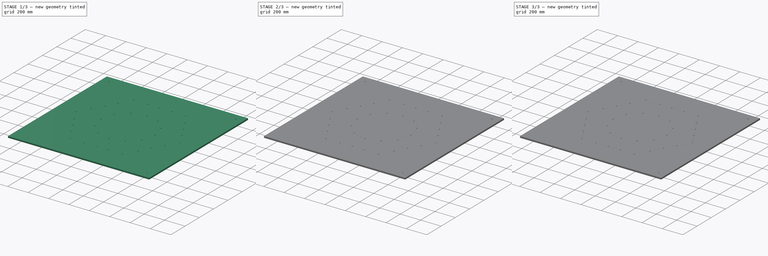
[diagram: build sequence overview — one tinted view per stage of 3, left to right]
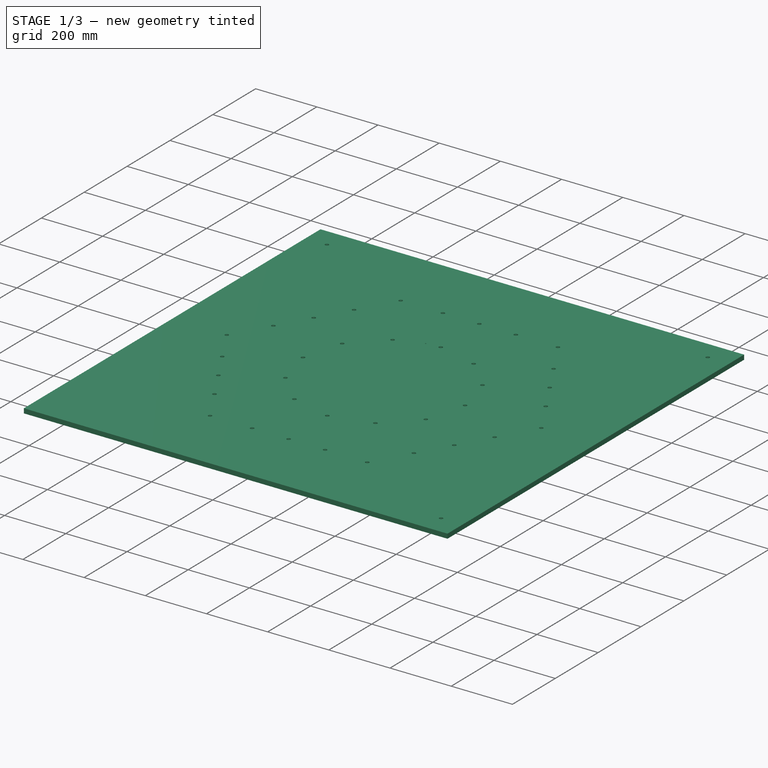
[diagram: stage 1 of 3 — iso view after this stage's code; geometry added in this stage tinted green]
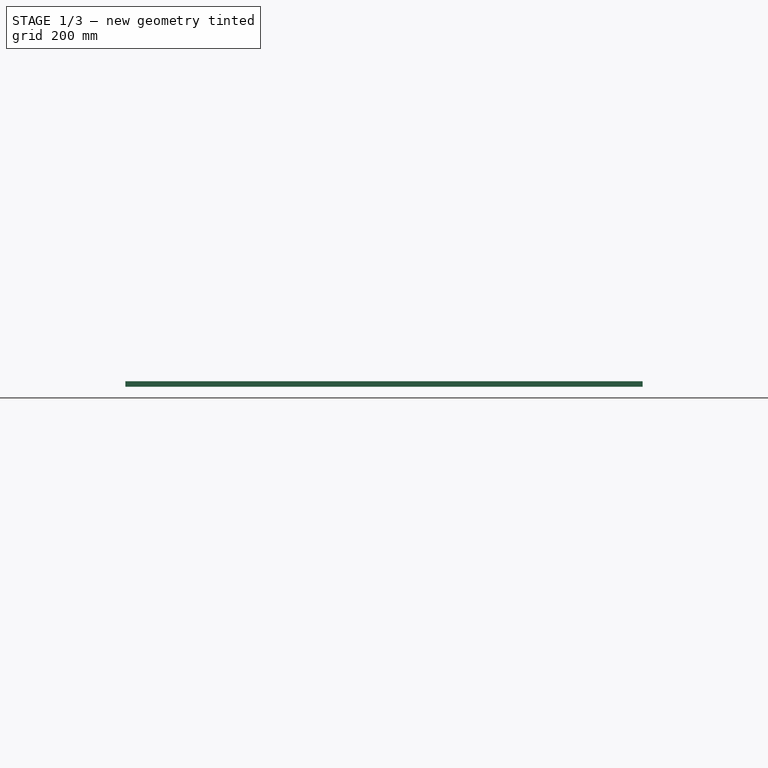
[diagram: stage 1 of 3 — front view after this stage's code; geometry added in this stage tinted green]
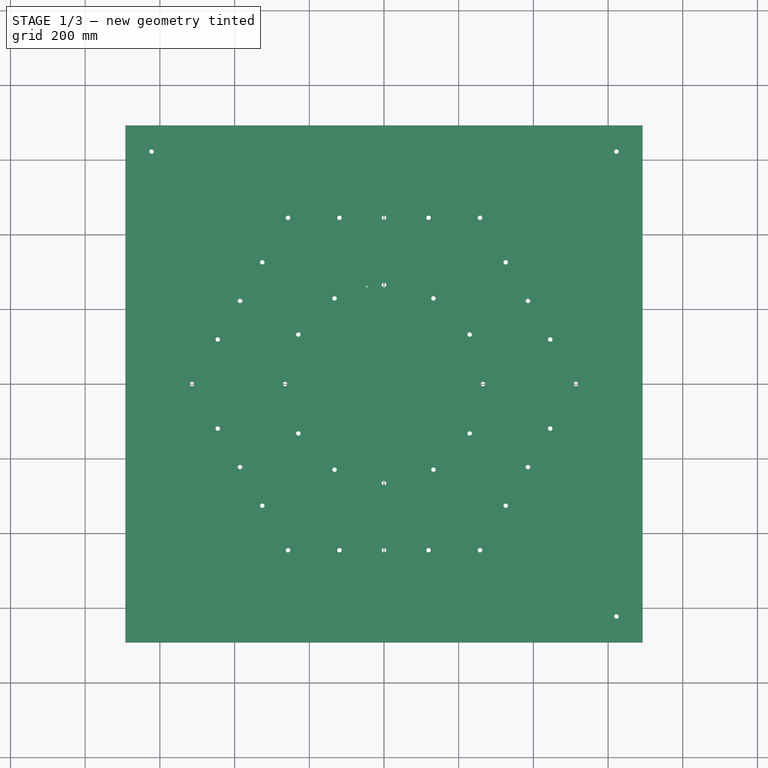
[diagram: stage 1 of 3 — top view after this stage's code; geometry added in this stage tinted green]
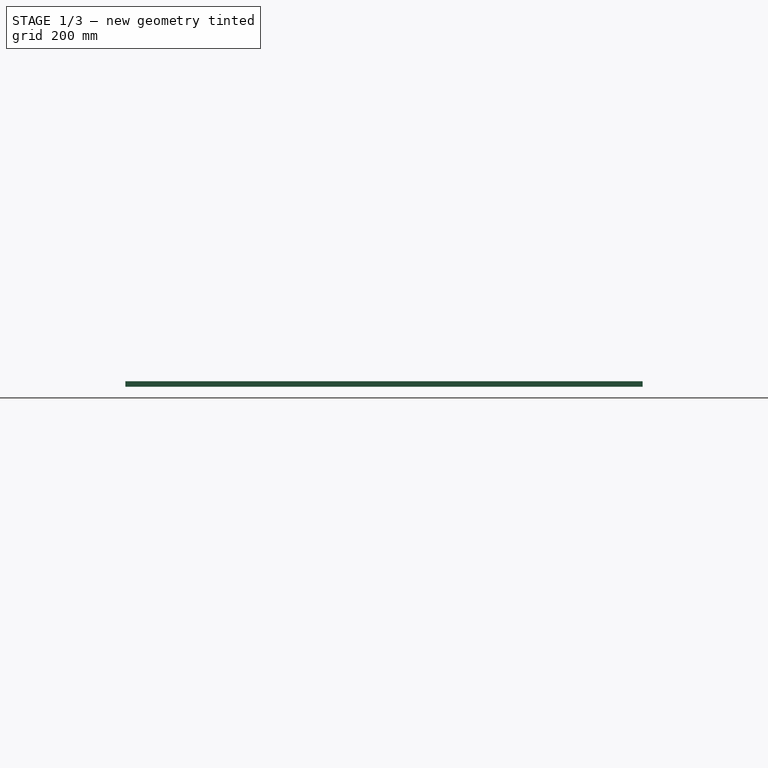
[diagram: stage 1 of 3 — right view after this stage's code; geometry added in this stage tinted green]
FCSTD DOCUMENT  (FreeCAD 1.0R39109 (Git))
Label: Stator_Mold_BoltShaftLayer_Hexagonal
License: All rights reserved
LicenseURL: http://en.wikipedia.org/wiki/All_rights_reserved
objects: App::Link×10, App::Part×3, Sketcher::SketchObject×2, PartDesign::Pocket×2, PartDesign::PolarPattern×2, Part::FeaturePython×2, Spreadsheet::Sheet×1, PartDesign::Plane×1, PartDesign::SubShapeBinder×1, PartDesign::FeatureBase×1, PartDesign::Body×1
note: 19 computed .brp shape members not serialized (recipe doc carries the construction recipe); baked Part::Feature solids carry a one-line shape summary decoded from their .brp
EXTERNAL_REF file=../../../Master_of_Puppets.FCStd obj=Alternator
EXTERNAL_REF file=../../../Master_of_Puppets.FCStd obj=Spreadsheet
EXTERNAL_REF file=Stator_Mold_BoltShaftPattern_Hexagonal.FCStd obj=Body
EXTERNAL_REF file=../../../Fasteners/Fastener_WoodScrew_StatorMold.FCStd obj=Part

FEATURE [PartDesign::Body] Body  label="Stator_Mold_BoltShaftLayer"
  AllowCompound = false
  BaseFeature = -> Binder
  Group = -> [BaseFeature,DatumPlane001,Sketch,Pocket,PolarPattern,Sketch001,Pocket001,PolarPattern001]
  Openafpm_Flat = true
  Origin = -> Origin
  Tip = -> PolarPattern001
FEATURE [App::Link] Link  label="Fastener_WoodScrew_Inner1"
  LinkPlacement = pos=(260.841,45.9933,0) rot=(0,0,1;0rad)
  LinkedObject = -> <external ../../../Fasteners/Fastener_WoodScrew_StatorMold.FCStd>#Part
  Placement = pos=(260.841,45.9933,0) rot=(0,0,1;0rad)
  expr: .Placement.Base.x = Spreadsheet.InnerScrew1X
  expr: .Placement.Base.y = Spreadsheet.InnerScrew1Y
FEATURE [App::Link] Link001  label="Fastener_WoodScrew_Inner2"
  LinkPlacement = pos=(248.892,90.5892,0) rot=(0,0,1;0rad)
  LinkedObject = -> Link
  Placement = pos=(248.892,90.5892,0) rot=(0,0,1;0rad)
  expr: .Placement.Base.x = Spreadsheet.InnerScrew2X
  expr: .Placement.Base.y = Spreadsheet.InnerScrew2Y
FEATURE [App::Part] Part  label="Inner_Screws_Part"
  Group = -> [Link,Link001]
  Origin = -> Origin001
FEATURE [Part::FeaturePython] Array  label="IslandScrews"  # Draft array (typed FeaturePython)
  AlwaysSyncPlacement = false
  Angle = 360
  ArrayType = 1
  Axis = (0,0,1)
  Base = -> Part
  Center = (0,0,0)
  Count = 12
  ExpandArray = false
  Fuse = false
  IntervalAxis = (0,0,0)
  IntervalX = (50,0,0)
  IntervalY = (0,50,0)
  IntervalZ = (0,0,50)
  NumberCircles = 3
  NumberPolar = 12
  NumberX = 2
  NumberY = 2
  NumberZ = 1
  PlacementList = 12 placements: [(0,0,0),(0,0,0),(0,0,0),(0,0,0),(0,0,0),(0,0,0),(0,0,0),(0,0,0),(0,0,0),(0,0,0),(0,0,0),(0,0,0)]
  RadialDistance = 50
  ScaleList = (12) [(1,1,1),(1,1,1),(1,1,1),(1,1,1),(1,1,1),(1,1,1),(1,1,1),(1,1,1),(1,1,1),(1,1,1),(1,1,1),(1,1,1)]
  Symmetry = 1
  TangentialDistance = 25
  expr: .Placement.Base.z = Spreadsheet.ScrewZ
  expr: NumberPolar = Spreadsheet.StatorMoldIslandNumberOfPolarPatternScrewOccurrences
FEATURE [App::Link] Link002  label="Fastener_WoodScrew_Outer1"
  LinkPlacement = pos=(-207.579,-445.155,0) rot=(0,0,1;0rad)
  LinkedObject = -> Link
  Placement = pos=(-207.579,-445.155,0) rot=(0,0,1;0rad)
  expr: .Placement.Base.x = Spreadsheet.OuterScrew1X
  expr: .Placement.Base.y = Spreadsheet.OuterScrew1Y
FEATURE [App::Link] Link003  label="Fastener_WoodScrew_Outer2"
  LinkPlacement = pos=(-162.023,-445.155,0) rot=(0,0,1;0rad)
  LinkedObject = -> Link002
  Placement = pos=(-162.023,-445.155,0) rot=(0,0,1;0rad)
  expr: .Placement.Base.x = Spreadsheet.OuterScrew2X
  expr: .Placement.Base.y = Spreadsheet.OuterScrew2Y
FEATURE [App::Link] Link004  label="Fastener_WoodScrew_Outer3"
  LinkPlacement = pos=(-78.4928,-445.155,0) rot=(0,0,1;0rad)
  LinkedObject = -> Link003
  Placement = pos=(-78.4928,-445.155,0) rot=(0,0,1;0rad)
  expr: .Placement.Base.x = Spreadsheet.OuterScrew3X
  expr: .Placement.Base.y = Spreadsheet.OuterScrew3Y
FEATURE [App::Link] Link005  label="Fastener_WoodScrew_Outer4"
  LinkPlacement = pos=(-38.946,-445.155,0) rot=(0,0,1;0rad)
  LinkedObject = -> Link004
  Placement = pos=(-38.946,-445.155,0) rot=(0,0,1;0rad)
  expr: .Placement.Base.x = Spreadsheet.OuterScrew4X
  expr: .Placement.Base.y = Spreadsheet.OuterScrew4Y
FEATURE [App::Link] Link006  label="Fastener_WoodScrew_Outer5"
  LinkPlacement = pos=(38.946,-445.155,0) rot=(0,0,1;0rad)
  LinkedObject = -> Link005
  Placement = pos=(38.946,-445.155,0) rot=(0,0,1;0rad)
  expr: .Placement.Base.x = Spreadsheet.OuterScrew5X
  expr: .Placement.Base.y = Spreadsheet.OuterScrew5Y
FEATURE [App::Link] Link007  label="Fastener_WoodScrew_Outer6"
  LinkPlacement = pos=(78.4928,-445.155,0) rot=(0,0,1;0rad)
  LinkedObject = -> Link006
  Placement = pos=(78.4928,-445.155,0) rot=(0,0,1;0rad)
  expr: .Placement.Base.x = Spreadsheet.OuterScrew6X
  expr: .Placement.Base.y = Spreadsheet.OuterScrew6Y
FEATURE [App::Link] Link008  label="Fastener_WoodScrew_Outer7"
  LinkPlacement = pos=(162.023,-445.155,0) rot=(0,0,1;0rad)
  LinkedObject = -> Link007
  Placement = pos=(162.023,-445.155,0) rot=(0,0,1;0rad)
  expr: .Placement.Base.x = Spreadsheet.OuterScrew7X
  expr: .Placement.Base.y = Spreadsheet.OuterScrew7Y
FEATURE [App::Link] Link009  label="Fastener_WoodScrew_Outer8"
  LinkPlacement = pos=(207.579,-445.155,0) rot=(0,0,1;0rad)
  LinkedObject = -> Link008
  Placement = pos=(207.579,-445.155,0) rot=(0,0,1;0rad)
  expr: .Placement.Base.x = Spreadsheet.OuterScrew8X
  expr: .Placement.Base.y = Spreadsheet.OuterScrew8Y
FEATURE [App::Part] Part001  label="Outer_Screws_Part"
  Group = -> [Link002,Link003,Link004,Link005,Link006,Link007,Link008,Link009]
  Origin = -> Origin002
FEATURE [Part::FeaturePython] Array001  label="SurroundScrews"  # Draft array (typed FeaturePython)
  AlwaysSyncPlacement = false
  Angle = 360
  ArrayType = 1
  Axis = (0,0,1)
  Base = -> Part001
  Center = (0,0,0)
  Count = 6
  ExpandArray = false
  Fuse = false
  IntervalAxis = (0,0,0)
  IntervalX = (50,0,0)
  IntervalY = (0,50,0)
  IntervalZ = (0,0,50)
  NumberCircles = 3
  NumberPolar = 6
  NumberX = 2
  NumberY = 2
  NumberZ = 1
  PlacementList = 6 placements: [(0,0,0),(0,0,0),(0,0,0),(0,0,0),(0,0,0),(0,0,0)]
  RadialDistance = 50
  ScaleList = (6) [(1,1,1),(1,1,1),(1,1,1),(1,1,1),(1,1,1),(1,1,1)]
  Symmetry = 1
  TangentialDistance = 25
  expr: .Placement.Base.z = Spreadsheet.ScrewZ
FEATURE [App::Part] Part003  label="Stator_Mold_BoltShaftLayer_Assembly"
  Group = -> [Binder,Body,Part,Array,Part001,Array001]
  Origin = -> Origin004

RESOLVED EXTERNAL PARTS (link-assembly join: the EXTERNAL_REF files above that resolve inside this repo's crawl, each included once):
---- part ../../../Fasteners/Fastener_WoodScrew_StatorMold.FCStd = doc fcstd_eb62fdcb5adc ----
FCSTD DOCUMENT  (FreeCAD 0.21R33771 (Git))
Label: Fastener_WoodScrew_StatorMold
License: All rights reserved
LicenseURL: http://en.wikipedia.org/wiki/All_rights_reserved
objects: Sketcher::SketchObject×4, PartDesign::Plane×4, Part::Helix×2, PartDesign::ShapeBinder×2, PartDesign::AdditiveCone×2, PartDesign::AdditiveCylinder×1, Part::Sweep×1, PartDesign::AdditivePipe×1, PartDesign::SubtractiveLoft×1, PartDesign::Body×1, Spreadsheet::Sheet×1, App::Link×1, App::Part×1
note: 24 computed .brp shape members not serialized (recipe doc carries the construction recipe); baked Part::Feature solids carry a one-line shape summary decoded from their .brp
EXTERNAL_REF file=../Master_of_Puppets.FCStd obj=Alternator
EXTERNAL_REF file=../Master_of_Puppets.FCStd obj=Fastener

FEATURE [Part::Helix] Helix  label="TipThreadPath"
  Angle = 10.758
  AttacherType = Attacher::AttachEngine3D
  Height = 5
  LocalCoord = 0
  Pitch = 2.5
  Placement = pos=(0.01,0,0.05) rot=(0,0,1;0rad)
  Radius = 0
  SegmentLength = 0
  Style = 1
  expr: .Placement.Base.x = Spreadsheet.TipThreadPathX
  expr: .Placement.Base.z = Spreadsheet.TipThreadPathZ
  expr: Angle = Spreadsheet.TipThreadPathAngle
  expr: Height = Spreadsheet.TipHeight
  expr: Pitch = Spreadsheet.TipThreadPathPitch
FEATURE [PartDesign::ShapeBinder] ShapeBinder  label="TipThreadPathBinder"
  Placement = pos=(0.01,0,0.05) rot=(0,0,1;0rad)
  Support = -> [Helix]
  TraceSupport = true
FEATURE [Sketcher::SketchObject] Sketch  label="TipThreadProfile"
  FullyConstrained = true
  MapMode = 5
  Placement = pos=(0,0,0) rot=(1,0,0;1.5708rad)
  Support = -> [XZ_Plane]
  expr: Constraints[6] = Spreadsheet.TipThreadProfileHeight
  expr: Constraints[7] = Spreadsheet.TipThreadProfileWidth
  sketch-geometry (3):
    g0: LineSegment StartX=0 StartY=0.1 StartZ=0 EndX=0.05 EndY=0.1 EndZ=0
    g1: LineSegment StartX=0.05 StartY=0.1 StartZ=0 EndX=0 EndY=0 EndZ=0
    g2: LineSegment StartX=0 StartY=0.1 StartZ=0 EndX=0 EndY=0 EndZ=0
  constraints (8):
    c: PointOnObject(g0,g-2)
    c: Horizontal(g0)
    c: Coincident(g0,g1)
    c: Coincident(g1,g-1)
    c: Coincident(g2,g0)
    c: Coincident(g2,g1)
    c: DistanceY(g2,g2) = 0.1
    c: DistanceX(g0,g0) = 0.05
FEATURE [PartDesign::Plane] DatumPlane001  label="ShankPlane"
  Length = 60
  MapMode = 2
  Placement = pos=(0,0,12.75) rot=(0,0,1;0rad)
  ResizeMode = 0
  Width = 60
  expr: .Placement.Base.z = Spreadsheet.ShankPlaneZ
FEATURE [PartDesign::Plane] DatumPlane  label="TipPlane"
  Length = 60
  MapMode = 2
  Placement = pos=(0,0,5) rot=(0,0,1;0rad)
  ResizeMode = 0
  Width = 60
  expr: .Placement.Base.z = Spreadsheet.TipHeight
FEATURE [PartDesign::AdditiveCone] Cone  label="Tip"
  Angle = 360
  AttacherType = Attacher::AttachEngine3D
  Height = 5
  Radius1 = 0
  Radius2 = 1.4
  expr: Height = Spreadsheet.TipHeight
  expr: Radius2 = Spreadsheet.InnerRadius
FEATURE [PartDesign::AdditiveCylinder] Cylinder  label="Shank"
  Angle = 360
  AttacherType = Attacher::AttachEngine3D
  BaseFeature = -> Cone
  FirstAngle = 0
  Height = 7.75
  MapMode = 5
  Placement = pos=(0,0,5) rot=(0,0,1;0rad)
  Radius = 1.4
  SecondAngle = 0
  Support = -> [DatumPlane]
  expr: Height = Spreadsheet.ShankHeight
  expr: Radius = Spreadsheet.InnerRadius
FEATURE [Sketcher::SketchObject] Sketch001  label="ShankThreadProfile"
  FullyConstrained = true
  MapMode = 5
  Placement = pos=(0,0,0) rot=(1,0,0;1.5708rad)
  Support = -> [XZ_Plane]
  expr: Constraints[5] = Spreadsheet.ShankThreadThickness
  expr: Constraints[6] = Spreadsheet.ShankThreadProfileWidth
  expr: Constraints[7] = Spreadsheet.ShankThreadProfileVerticalDistanceFromCenter
  expr: Constraints[8] = Spreadsheet.Radius
  sketch-geometry (3):
    g0: LineSegment StartX=0.95 StartY=4.6 StartZ=0 EndX=0.95 EndY=5.4 EndZ=0
    g1: LineSegment StartX=0.95 StartY=5.4 StartZ=0 EndX=2 EndY=5 EndZ=0
    g2: LineSegment StartX=2 StartY=5 StartZ=0 EndX=0.95 EndY=4.6 EndZ=0
  constraints (9):
    c: Vertical(g0)
    c: Coincident(g0,g1)
    c: Coincident(g1,g2)
    c: Coincident(g2,g0)
    c: Equal(g2,g1)
    c: DistanceY(g0,g0) = 0.8
    c: DistanceX(g0,g1) = 1.05
    c: DistanceY(g-1,g1) = 5
    c: DistanceX(g-1,g1) = 2
FEATURE [Part::Sweep] Sweep  label="TipThread"
  Frenet = true
  Sections = -> [Sketch,Sketch001]
  Solid = true
  Spine = -> Helix
  Transition = 1
FEATURE [Part::Helix] Helix001  label="ShankThreadPath"
  Angle = 0
  AttacherType = Attacher::AttachEngine3D
  Height = 7.75
  LocalCoord = 0
  Pitch = 0.96875
  Placement = pos=(0,0,5) rot=(0,0,1;0rad)
  Radius = 2
  SegmentLength = 0
  Style = 1
  expr: .Placement.Base.z = Spreadsheet.TipHeight
  expr: Height = Spreadsheet.ShankHeight
  expr: Pitch = Spreadsheet.ShankThreadPathPitch
  expr: Radius = Spreadsheet.Radius
FEATURE [PartDesign::ShapeBinder] ShapeBinder001  label="ShankThreadPathBinder"
  Placement = pos=(0,0,5) rot=(0,0,1;0rad)
  Support = -> [Helix001]
  TraceSupport = false
FEATURE [PartDesign::AdditivePipe] AdditivePipe  label="ShankThread"
  AuxilleryCurvelinear = true
  AuxillerySpineTangent = false
  BaseFeature = -> Cylinder
  Binormal = (0,0,0)
  Mode = 2
  Placement = pos=(0,0,5) rot=(0,0,1;0rad)
  Profile = -> Sketch001
  Spine = -> ShapeBinder001
  SpineTangent = false
  Transformation = 1
  Transition = 0
FEATURE [PartDesign::AdditiveCone] Cone001  label="Head"
  Angle = 360
  AttacherType = Attacher::AttachEngine3D
  BaseFeature = -> AdditivePipe
  Height = 2.25
  MapMode = 5
  Placement = pos=(0,0,12.75) rot=(0,0,1;0rad)
  Radius1 = 1.4
  Radius2 = 4
  Support = -> [DatumPlane001]
  expr: Height = Spreadsheet.HeadHeight
  expr: Radius1 = Spreadsheet.InnerRadius
  expr: Radius2 = Spreadsheet.HeadRadius
FEATURE [PartDesign::Plane] DatumPlane002  label="HeadPlane"
  Length = 60
  MapMode = 2
  Placement = pos=(0,0,15) rot=(0,0,1;0rad)
  ResizeMode = 0
  Width = 60
  expr: .Placement.Base.z = Spreadsheet.HeadPlaneZ
FEATURE [Sketcher::SketchObject] Sketch002  label="CrossSketch"
  FullyConstrained = true
  MapMode = 5
  Placement = pos=(0,0,15) rot=(0,0,1;0rad)
  Support = -> [DatumPlane002]
  expr: Constraints[32] = Spreadsheet.CrossWidth
  expr: Constraints[33] = Spreadsheet.CrossHeight
  sketch-geometry (12):
    g0: LineSegment StartX=-0.7 StartY=2.4 StartZ=0 EndX=0.7 EndY=2.4 EndZ=0
    g1: LineSegment StartX=0.7 StartY=2.4 StartZ=0 EndX=0.7 EndY=0.700003 EndZ=0
    g2: LineSegment StartX=0.7 StartY=0.700003 StartZ=0 EndX=2.4 EndY=0.7 EndZ=0
    g3: LineSegment StartX=2.4 StartY=0.7 StartZ=0 EndX=2.4 EndY=-0.7 EndZ=0
    g4: LineSegment StartX=2.4 StartY=-0.7 StartZ=0 EndX=0.7 EndY=-0.7 EndZ=0
    g5: LineSegment StartX=0.7 StartY=-0.7 StartZ=0 EndX=0.7 EndY=-2.4 EndZ=0
    g6: LineSegment StartX=0.7 StartY=-2.4 StartZ=0 EndX=-0.7 EndY=-2.4 EndZ=0
    g7: LineSegment StartX=-0.7 StartY=-2.4 StartZ=0 EndX=-0.7 EndY=-0.7 EndZ=0
    g8: LineSegment StartX=-0.7 StartY=-0.7 StartZ=0 EndX=-2.4 EndY=-0.7 EndZ=0
    g9: LineSegment StartX=-2.4 StartY=-0.7 StartZ=0 EndX=-2.4 EndY=0.7 EndZ=0
    g10: LineSegment StartX=-2.4 StartY=0.7 StartZ=0 EndX=-0.7 EndY=0.7 EndZ=0
    g11: LineSegment StartX=-0.7 StartY=0.7 StartZ=0 EndX=-0.7 EndY=2.4 EndZ=0
  constraints (34):
    c: Horizontal(g0)
    c: Coincident(g0,g1)
    c: Vertical(g1)
    c: Coincident(g1,g2)
    c: Coincident(g2,g3)
    c: Vertical(g3)
    c: Coincident(g3,g4)
    c: Coincident(g4,g5)
    c: Vertical(g5)
    c: Coincident(g5,g6)
    c: Horizontal(g6)
    c: Coincident(g6,g7)
    c: Vertical(g7)
    c: Coincident(g7,g8)
    c: Horizontal(g8)
    c: Coincident(g8,g9)
    c: Vertical(g9)
    c: Coincident(g9,g10)
    c: Horizontal(g10)
    c: Coincident(g10,g11)
    c: Coincident(g11,g0)
    c: Vertical(g11)
    c: Horizontal(g4)
    c: Equal(g8,g7)
    c: Equal(g7,g10)
    c: Equal(g10,g11)
    c: Equal(g11,g2)
    c: Equal(g2,g4)
    c: Equal(g0,g9)
    c: Equal(g9,g3)
    c: Symmetric(g0,g5,g-1)
    c: Symmetric(g3,g8,g-2)
    c: DistanceX(g0,g0) = 1.4
    c: DistanceY(g5,g0) = 4.8
FEATURE [PartDesign::Plane] DatumPlane003  label="CrossRecessPlane"
  Length = 60
  MapMode = 2
  Placement = pos=(0,0,13.25) rot=(0,0,1;0rad)
  ResizeMode = 0
  Width = 60
  expr: .Placement.Base.z = Spreadsheet.CrossRecessPlaneZ
FEATURE [Sketcher::SketchObject] Sketch004  label="CrossRecessSketch"
  FullyConstrained = true
  MapMode = 5
  Placement = pos=(0,0,13.25) rot=(0,0,1;0rad)
  Support = -> [DatumPlane003]
  expr: Constraints[32] = Spreadsheet.CrossRecessHeight
  expr: Constraints[33] = Spreadsheet.CrossRecessWidth
  sketch-geometry (12):
    g0: LineSegment StartX=-0.252577 StartY=0.865979 StartZ=0 EndX=0.252577 EndY=0.865979 EndZ=0
    g1: LineSegment StartX=0.252577 StartY=0.865979 StartZ=0 EndX=0.252577 EndY=0.252577 EndZ=0
    g2: LineSegment StartX=0.252577 StartY=0.252577 StartZ=0 EndX=0.865979 EndY=0.252577 EndZ=0
    g3: LineSegment StartX=0.865979 StartY=0.252577 StartZ=0 EndX=0.865979 EndY=-0.252577 EndZ=0
    g4: LineSegment StartX=0.865979 StartY=-0.252577 StartZ=0 EndX=0.252577 EndY=-0.252577 EndZ=0
    g5: LineSegment StartX=0.252577 StartY=-0.252577 StartZ=0 EndX=0.252577 EndY=-0.865979 EndZ=0
    g6: LineSegment StartX=0.252577 StartY=-0.865979 StartZ=0 EndX=-0.252577 EndY=-0.865979 EndZ=0
    g7: LineSegment StartX=-0.252577 StartY=-0.865979 StartZ=0 EndX=-0.252577 EndY=-0.252577 EndZ=0
    g8: LineSegment StartX=-0.252577 StartY=-0.252577 StartZ=0 EndX=-0.865979 EndY=-0.252577 EndZ=0
    g9: LineSegment StartX=-0.865979 StartY=-0.252577 StartZ=0 EndX=-0.865979 EndY=0.252577 EndZ=0
    g10: LineSegment StartX=-0.865979 StartY=0.252577 StartZ=0 EndX=-0.252577 EndY=0.252577 EndZ=0
    g11: LineSegment StartX=-0.252577 StartY=0.252577 StartZ=0 EndX=-0.252577 EndY=0.865979 EndZ=0
  constraints (34):
    c: Horizontal(g0)
    c: Coincident(g0,g1)
    c: Vertical(g1)
    c: Coincident(g1,g2)
    c: Coincident(g2,g3)
    c: Vertical(g3)
    c: Coincident(g3,g4)
    c: Coincident(g4,g5)
    c: Vertical(g5)
    c: Coincident(g5,g6)
    c: Horizontal(g6)
    c: Coincident(g6,g7)
    c: Vertical(g7)
    c: Coincident(g7,g8)
    c: Coincident(g8,g9)
    c: Vertical(g9)
    c: Coincident(g9,g10)
    c: Horizontal(g10)
    c: Coincident(g10,g11)
    c: Coincident(g11,g0)
    c: Vertical(g11)
    c: Horizontal(g8)
    c: Horizontal(g4)
    c: Horizontal(g2)
    c: Equal(g7,g8)
    c: Equal(g8,g10)
    c: Equal(g10,g11)
    c: Equal(g1,g2)
    c: Equal(g4,g5)
    c: Equal(g9,g6)
    c: Symmetric(g0,g5,g-1)
    c: Symmetric(g9,g2,g-2)
    c: DistanceY(g5,g0) = 1.73196
    c: DistanceX(g0,g0) = 0.505155
FEATURE [PartDesign::SubtractiveLoft] SubtractiveLoft  label="CrossRecess"
  BaseFeature = -> Cone001
  Closed = false
  Placement = pos=(0,0,12.75) rot=(0,0,1;0rad)
  Profile = -> Sketch002
  Ruled = false
  Sections = -> [Sketch004]
FEATURE [PartDesign::Body] Body
  Group = -> [Cone,DatumPlane,Cylinder,DatumPlane001,Sketch001,ShapeBinder,ShapeBinder001,AdditivePipe,Cone001,DatumPlane002,Sketch002,DatumPlane003,Sketch004,SubtractiveLoft]
  Origin = -> Origin
  Tip = -> SubtractiveLoft
  Variant = 0
  expr: .Variant.Enum = Spreadsheet.cells[<<A3:|>>]
FEATURE [Spreadsheet::Sheet] Spreadsheet
  cells = A1='Variant; B1='Diameter (including threads); C1='Length; A2==hiddenref(Body.Variant.String); B2(Diameter)==.B3; C2(Length)==.C3; A3='StatorMold; B3==Master_of_Puppets#Alternator.StatorMoldWoodScrewDiameter; C3==Master_of_Puppets#Alternator.StatorMoldScrewLength; A4='RotorMold; B4==Master_of_Puppets#Fastener.WoodScrewDiameter; C4==Master_of_Puppets#Alternator.RotorMoldScrewLength; A6='Parameters; A7='ShankThreadTurns; B7(ShankThreadTurns)=8; A8='TipThreadTurns; B8(TipThreadTurns)=2; A9='ShankThreadThickness; B9(ShankThreadThickness)=0.8; A10='Calculated; A11='Radius; B11(Radius)==Diameter / 2; A12='HeadHeight; B12(HeadHeight)==1.9 * Radius - 1.55; A13='TipHeight; B13(TipHeight)=5; A14='ShankHeight; B14(ShankHeight)==Length - HeadHeight - TipHeight; A15='ShankPlaneZ; B15(ShankPlaneZ)==TipHeight + ShankHeight; A16='HeadRadius; B16(HeadRadius)==1.7 * Radius + 0.6; A17='HeadPlaneZ; B17(HeadPlaneZ)==ShankPlaneZ + HeadHeight; A18='InnerRadius; B18(InnerRadius)==0.7 * Radius; A19='TipThreadProfile; A20='Height; B20(TipThreadProfileHeight)=0.1; A21='Width; B21(TipThreadProfileWidth)=0.05; A22='ShankThreadProfile; A23='Thickness; B23(ShankThreadProfileThickness)==Radius - InnerRadius; A24='HorizontalDistanceFromCenter; B24(ShankThreadProfileHorizontalDistanceFromCenter)==Radius - 0.45; A25='VerticalDistanceFromCenter; B25(ShankThreadProfileVerticalDistanceFromCenter)==TipHeight; A26='Width; B26(ShankThreadProfileWidth)==Radius + ShankThreadProfileThickness - ShankThreadProfileHorizontalDistanceFromCenter; A27='TipThreadPath; A28='Angle; B28(TipThreadPathAngle)==atan((Radius - ShankThreadProfileWidth) / TipHeight); A29='X; B29(TipThreadPathX)==TipThreadProfileWidth / 5; A30='Z; B30(TipThreadPathZ)==TipThreadProfileHeight / 2; A31='Pitch; B31(TipThreadPathPitch)==TipHeight / TipThreadTurns; A32='ShankThreadPath; A33='Pitch; B33(ShankThreadPathPitch)==ShankHeight / ShankThreadTurns; A34='Cross; A35='Width; B35(CrossWidth)==InnerRadius; A36='Height; B36(CrossHeight)==HeadRadius * 2 * 0.6; A37='RecessPlaneZ; B37(CrossRecessPlaneZ)==ShankPlaneZ + 0.5; A38='RecessWidth; B38(CrossRecessWidth)==CrossWidth * 0.360824742268041; A39='RecessHeight; B39(CrossRecessHeight)==CrossHeight * 0.360824742268041
  expr: .cells.Bind.B2.C2 = tuple(.cells; <<B>> + str(hiddenref(Body.Variant) + 3); <<C>> + str(hiddenref(Body.Variant) + 3))
FEATURE [App::Link] Link  label="TipThreadLink"
  LinkedObject = -> Sweep
FEATURE [App::Part] Part  label="Fastener_WoodScrew"
  Group = -> [Link,Body]
  Origin = -> Origin001
---- part ../../../Master_of_Puppets.FCStd = doc fcstd_6404554055c4 (61625 chars; too large to inline — full recipe in that document) ----
---- part Stator_Mold_BoltShaftPattern_Hexagonal.FCStd = doc fcstd_7455c7dfbf1b ----
FCSTD DOCUMENT  (FreeCAD 1.0R39109 (Git))
Label: Stator_Mold_BoltShaftPattern_Hexagonal
License: All rights reserved
LicenseURL: http://en.wikipedia.org/wiki/All_rights_reserved
objects: Sketcher::SketchObject×5, PartDesign::Pocket×5, PartDesign::PolarPattern×5, Spreadsheet::Sheet×1, PartDesign::Plane×1, PartDesign::SubShapeBinder×1, PartDesign::FeatureBase×1, PartDesign::Body×1
note: 40 computed .brp shape members not serialized (recipe doc carries the construction recipe); baked Part::Feature solids carry a one-line shape summary decoded from their .brp
EXTERNAL_REF file=../../../Master_of_Puppets.FCStd obj=Alternator
EXTERNAL_REF file=../../../Master_of_Puppets.FCStd obj=Spreadsheet
EXTERNAL_REF file=Stator_Mold_Base.FCStd obj=PocketBody

FEATURE [Spreadsheet::Sheet] Spreadsheet
  cells = A1='Inputs; A2='StatorThickness; B2='StatorMoldBoltDiameter; C2='IslandInnerRadius; A3(StatorThickness)==Master_of_Puppets#Spreadsheet.StatorThickness; B3(StatorMoldBoltDiameter)==Master_of_Puppets#Alternator.StatorMoldBoltDiameter; C3(IslandInnerRadius)==Master_of_Puppets#Alternator.IslandInnerRadius; A4='LengthMiddleHoles; B4='StatorMoldIslandNumberOfBolts; A5(LengthMiddleHoles)==Master_of_Puppets#Alternator.LengthMiddleHoles; B5(StatorMoldIslandNumberOfBolts)==Master_of_Puppets#Alternator.StatorMoldIslandNumberOfBolts; A6='FirstOuterBoltHolePolarPatternNumberOfOccurrences; B6='FirstOuterBoltHolePolarPatternAngle; A7(FirstOuterBoltHolePolarPatternNumberOfOccurrences)==Master_of_Puppets#Alternator.FirstOuterBoltHolePolarPatternNumberOfOccurrences; B7(FirstOuterBoltHolePolarPatternAngle)==Master_of_Puppets#Alternator.FirstOuterBoltHolePolarPatternAngle; A8='SecondOuterBoltHolePolarPatternNumberOfOccurrences; B8='SecondOuterBoltHolePolarPatternAngle; A9(SecondOuterBoltHolePolarPatternNumberOfOccurrences)==Master_of_Puppets#Alternator.SecondOuterBoltHolePolarPatternNumberOfOccurrences; B9(SecondOuterBoltHolePolarPatternAngle)==Master_of_Puppets#Alternator.SecondOuterBoltHolePolarPatternAngle; A10='Calculated; A11='StatorMoldBoltRadius; A12(StatorMoldBoltRadius)==StatorMoldBoltDiameter / 2
FEATURE [PartDesign::Plane] DatumPlane001  label="DatumPlane"
  AttachmentOffset = pos=(0,0,15) rot=(0,0,1;0rad)
  AttachmentSupport = -> [XY_Plane]
  Length = 1856.96
  MapMode = 5
  Placement = pos=(0,0,15) rot=(0,0,1;0rad)
  ResizeMode = 0
  Width = 1856.96
  expr: .AttachmentOffset.Base.z = Spreadsheet.StatorThickness
FEATURE [Sketcher::SketchObject] Sketch006  label="FirstOuterBoltHoleSketch"
  ArcFitTolerance = 0
  AttachmentSupport = -> [DatumPlane001]
  FullyConstrained = true
  MakeInternals = false
  MapMode = 5
  Placement = pos=(0,0,15) rot=(0,0,1;0rad)
  expr: Constraints[18] = Spreadsheet.LengthMiddleHoles
  expr: Constraints[20] = Spreadsheet.StatorMoldBoltRadius
  sketch-geometry (9):
    g0: LineSegment [constr] StartX=570.277 StartY=5.68e-14 StartZ=0 EndX=285.139 EndY=493.875 EndZ=0
    g1: LineSegment [constr] StartX=285.139 StartY=493.875 StartZ=0 EndX=-285.139 EndY=493.875 EndZ=0
    g2: LineSegment [constr] StartX=-285.139 StartY=493.875 StartZ=0 EndX=-570.277 EndY=-5.68e-14 EndZ=0
    g3: LineSegment [constr] StartX=-570.277 StartY=-5.68e-14 StartZ=0 EndX=-285.139 EndY=-493.875 EndZ=0
    g4: LineSegment [constr] StartX=-285.139 StartY=-493.875 StartZ=0 EndX=285.139 EndY=-493.875 EndZ=0
    g5: LineSegment [constr] StartX=285.139 StartY=-493.875 StartZ=0 EndX=570.277 EndY=5.68e-14 EndZ=0
    g6: Circle [constr] CenterX=0 CenterY=0 CenterZ=0 NormalX=0 NormalY=0 NormalZ=1 AngleXU=0 Radius=570.277
    g7: Circle CenterX=-132.333 CenterY=-493.875 CenterZ=0 NormalX=0 NormalY=0 NormalZ=1 AngleXU=0 Radius=6
    g8: LineSegment [constr] StartX=-132.333 StartY=-493.875 StartZ=0 EndX=0 EndY=0 EndZ=0
  constraints (21):
    c: Coincident(g0,g1)
    c: Coincident(g1,g2)
    c: Coincident(g2,g3)
    c: Coincident(g3,g4)
    c: Coincident(g4,g5)
    c: Coincident(g5,g0)
    c: Equal(g0, g1-g5) x5
    c: PointOnObject(g0,g6)
    c: PointOnObject(g1,g6)
    c: PointOnObject(g2,g6)
    c: PointOnObject(g3,g6)
    c: PointOnObject(g4,g6)
    c: PointOnObject(g5,g6)
    c: Coincident(g6,g-1)
    c: Radius(g6) = 570.277
    c: Horizontal(g1)
    c: Radius(g7) = 6
    c: PointOnObject(g7,g4)
    c: Coincident(g8,g7)
    c: Coincident(g8,g6)
    c: Angle(g-2,g8) = 2.87979
FEATURE [PartDesign::SubShapeBinder] Binder
  BindCopyOnChange = 0
  BindMode = 0
  ClaimChildren = true
  Context = -> Body [Binder.]
  Fuse = false
  MakeFace = true
  OffsetFill = false
  OffsetIntersection = false
  OffsetJoinType = 0
  OffsetOpenResult = false
  PartialLoad = false
  Refine = true
  Relative = true
  Support = -> [<external Stator_Mold_Base.FCStd>#PocketBody]
  _Version = 2
FEATURE [PartDesign::FeatureBase] BaseFeature
  BaseFeature = -> Binder
  Suppressed = false
FEATURE [PartDesign::Pocket] Pocket002  label="FirstOuterBoltHolePocket"
  BaseFeature = -> BaseFeature
  Direction = (0,0,-1)
  Length = 5
  Length2 = 100
  Profile = -> Sketch006
  Suppressed = false
  Type = 1
FEATURE [Sketcher::SketchObject] Sketch  label="InnerBoltHolesSketch"
  ArcFitTolerance = 0
  AttachmentSupport = -> [DatumPlane001]
  FullyConstrained = true
  MakeInternals = false
  MapMode = 5
  Placement = pos=(0,0,15) rot=(0,0,1;0rad)
  expr: Constraints[2] = Spreadsheet.StatorMoldBoltRadius
  expr: Constraints[3] = Spreadsheet.IslandInnerRadius
  sketch-geometry (2):
    g0: Circle [constr] CenterX=0 CenterY=0 CenterZ=0 NormalX=0 NormalY=0 NormalZ=1 AngleXU=0 Radius=194.822
    g1: Circle CenterX=0 CenterY=194.822 CenterZ=0 NormalX=0 NormalY=0 NormalZ=1 AngleXU=0 Radius=6
  constraints (5):
    c: Coincident(g0,g-1)
    c: PointOnObject(g1,g0)
    c: Radius(g1) = 6
    c: Radius(g0) = 194.822
    c: PointOnObject(g1,g-2)
FEATURE [Sketcher::SketchObject] Sketch007  label="CornerBoltSketch"
  ArcFitTolerance = 0
  AttachmentSupport = -> [DatumPlane001]
  FullyConstrained = true
  MakeInternals = false
  MapMode = 5
  Placement = pos=(0,0,15) rot=(0,0,1;0rad)
  expr: Constraints[18] = Spreadsheet.LengthMiddleHoles
  expr: Constraints[21] = Spreadsheet.StatorMoldBoltRadius
  sketch-geometry (8):
    g0: LineSegment [constr] StartX=285.139 StartY=493.875 StartZ=0 EndX=-285.139 EndY=493.875 EndZ=0
    g1: LineSegment [constr] StartX=-285.139 StartY=493.875 StartZ=0 EndX=-570.277 EndY=0 EndZ=0
    g2: LineSegment [constr] StartX=-570.277 StartY=0 StartZ=0 EndX=-285.139 EndY=-493.875 EndZ=0
    g3: LineSegment [constr] StartX=-285.139 StartY=-493.875 StartZ=0 EndX=285.139 EndY=-493.875 EndZ=0
    g4: LineSegment [constr] StartX=285.139 StartY=-493.875 StartZ=0 EndX=570.277 EndY=0 EndZ=0
    g5: LineSegment [constr] StartX=570.277 StartY=0 StartZ=0 EndX=285.139 EndY=493.875 EndZ=0
    g6: Circle [constr] CenterX=0 CenterY=0 CenterZ=0 NormalX=0 NormalY=0 NormalZ=1 AngleXU=0 Radius=570.277
    g7: Circle CenterX=285.139 CenterY=493.875 CenterZ=0 NormalX=0 NormalY=0 NormalZ=1 AngleXU=0 Radius=6
  constraints (18):
    c: Coincident(g0,g1)
    c: Coincident(g1,g2)
    c: Coincident(g2,g3)
    c: Coincident(g3,g4)
    c: Coincident(g4,g5)
    c: Coincident(g5,g0)
    c: Equal(g0, g1-g5) x5
    c: PointOnObject(g0,g6)
    c: PointOnObject(g1,g6)
    c: PointOnObject(g2,g6)
    c: PointOnObject(g3,g6)
    c: PointOnObject(g4,g6)
    c: PointOnObject(g5,g6)
    c: Coincident(g6,g-1)
    c: Radius(g6) = 570.277
    c: Horizontal(g1,g4)
    c: Coincident(g7,g0)
    c: Radius(g7) = 6
FEATURE [Sketcher::SketchObject] Sketch008  label="SecondOuterBoltHoleSketch"
  ArcFitTolerance = 0
  AttachmentSupport = -> [DatumPlane001]
  FullyConstrained = true
  MakeInternals = false
  MapMode = 5
  Placement = pos=(0,0,15) rot=(0,0,1;0rad)
  expr: Constraints[18] = Spreadsheet.LengthMiddleHoles
  expr: Constraints[20] = Spreadsheet.StatorMoldBoltRadius
  sketch-geometry (8):
    g0: LineSegment [constr] StartX=570.277 StartY=-2.842e-13 StartZ=0 EndX=285.139 EndY=493.875 EndZ=0
    g1: LineSegment [constr] StartX=285.139 StartY=493.875 StartZ=0 EndX=-285.139 EndY=493.875 EndZ=0
    g2: LineSegment [constr] StartX=-285.139 StartY=493.875 StartZ=0 EndX=-570.277 EndY=1.4211e-12 EndZ=0
    g3: LineSegment [constr] StartX=-570.277 StartY=1.4211e-12 StartZ=0 EndX=-285.139 EndY=-493.875 EndZ=0
    g4: LineSegment [constr] StartX=-285.139 StartY=-493.875 StartZ=0 EndX=285.139 EndY=-493.875 EndZ=0
    g5: LineSegment [constr] StartX=285.139 StartY=-493.875 StartZ=0 EndX=570.277 EndY=-2.842e-13 EndZ=0
    g6: Circle [constr] CenterX=0 CenterY=0 CenterZ=0 NormalX=0 NormalY=0 NormalZ=1 AngleXU=0 Radius=570.277
    g7: Circle CenterX=0 CenterY=-493.875 CenterZ=0 NormalX=0 NormalY=0 NormalZ=1 AngleXU=0 Radius=6
  constraints (19):
    c: Coincident(g0,g1)
    c: Coincident(g1,g2)
    c: Coincident(g2,g3)
    c: Coincident(g3,g4)
    c: Coincident(g4,g5)
    c: Coincident(g5,g0)
    c: Equal(g0, g1-g5) x5
    c: PointOnObject(g0,g6)
    c: PointOnObject(g1,g6)
    c: PointOnObject(g2,g6)
    c: PointOnObject(g3,g6)
    c: PointOnObject(g4,g6)
    c: PointOnObject(g5,g6)
    c: Coincident(g6,g-1)
    c: Radius(g6) = 570.277
    c: Horizontal(g1)
    c: Radius(g7) = 6
    c: PointOnObject(g7,g4)
    c: PointOnObject(g7,g-2)
FEATURE [PartDesign::Pocket] Pocket004  label="SecondOuterBoltHolePocket"
  BaseFeature = -> Pocket002
  Direction = (0,0,-1)
  Length = 5
  Length2 = 5
  Profile = -> Sketch008
  Refine = true
  Suppressed = false
  Type = 1
FEATURE [Sketcher::SketchObject] Sketch009  label="ThirdOuterBoltHoleSketch"
  ArcFitTolerance = 0
  AttachmentSupport = -> [DatumPlane001]
  FullyConstrained = true
  MakeInternals = false
  MapMode = 5
  Placement = pos=(0,0,15) rot=(0,0,1;0rad)
  expr: Constraints[18] = Spreadsheet.LengthMiddleHoles
  expr: Constraints[20] = Spreadsheet.StatorMoldBoltRadius
  sketch-geometry (9):
    g0: LineSegment [constr] StartX=570.277 StartY=5.68e-14 StartZ=0 EndX=285.139 EndY=493.875 EndZ=0
    g1: LineSegment [constr] StartX=285.139 StartY=493.875 StartZ=0 EndX=-285.139 EndY=493.875 EndZ=0
    g2: LineSegment [constr] StartX=-285.139 StartY=493.875 StartZ=0 EndX=-570.277 EndY=0 EndZ=0
    g3: LineSegment [constr] StartX=-570.277 StartY=0 StartZ=0 EndX=-285.139 EndY=-493.875 EndZ=0
    g4: LineSegment [constr] StartX=-285.139 StartY=-493.875 StartZ=0 EndX=285.139 EndY=-493.875 EndZ=0
    g5: LineSegment [constr] StartX=285.139 StartY=-493.875 StartZ=0 EndX=570.277 EndY=5.68e-14 EndZ=0
    g6: Circle [constr] CenterX=0 CenterY=0 CenterZ=0 NormalX=0 NormalY=0 NormalZ=1 AngleXU=0 Radius=570.277
    g7: Circle CenterX=132.333 CenterY=-493.875 CenterZ=0 NormalX=0 NormalY=0 NormalZ=1 AngleXU=0 Radius=6
    g8: LineSegment [constr] StartX=132.333 StartY=-493.875 StartZ=0 EndX=0 EndY=0 EndZ=0
  constraints (21):
    c: Coincident(g0,g1)
    c: Coincident(g1,g2)
    c: Coincident(g2,g3)
    c: Coincident(g3,g4)
    c: Coincident(g4,g5)
    c: Coincident(g5,g0)
    c: Equal(g0, g1-g5) x5
    c: PointOnObject(g0,g6)
    c: PointOnObject(g1,g6)
    c: PointOnObject(g2,g6)
    c: PointOnObject(g3,g6)
    c: PointOnObject(g4,g6)
    c: PointOnObject(g5,g6)
    c: Coincident(g6,g-1)
    c: Radius(g6) = 570.277
    c: Horizontal(g1)
    c: Radius(g7) = 6
    c: PointOnObject(g7,g4)
    c: Coincident(g8,g7)
    c: Coincident(g8,g6)
    c: Angle(g-2,g8) = 3.40339
FEATURE [PartDesign::Pocket] Pocket005  label="ThirdOuterBoltHolePocket"
  BaseFeature = -> Pocket004
  Direction = (0,0,-1)
  Length = 5
  Length2 = 5
  Profile = -> Sketch009
  ReferenceAxis = -> Sketch009 [N_Axis]
  Refine = true
  Suppressed = false
  Type = 1
FEATURE [PartDesign::PolarPattern] PolarPattern006  label="FirstOuterBoltHolePolarPattern"
  Angle = 240
  Axis = -> Sketch006 [N_Axis]
  BaseFeature = -> Pocket005
  Mode = 0
  Occurrences = 5
  Offset = 60
  Originals = -> [Pocket002]
  Suppressed = false
  TransformMode = 0
  expr: Angle = Spreadsheet.FirstOuterBoltHolePolarPatternAngle
  expr: Occurrences = Spreadsheet.FirstOuterBoltHolePolarPatternNumberOfOccurrences
FEATURE [PartDesign::PolarPattern] PolarPattern008  label="SecondOuterBoltHolePolarPattern"
  Angle = 360
  Axis = -> Sketch008 [N_Axis]
  BaseFeature = -> PolarPattern006
  Mode = 0
  Occurrences = 6
  Offset = 120
  Originals = -> [Pocket004]
  Refine = true
  Suppressed = false
  TransformMode = 0
  expr: Angle = Spreadsheet.SecondOuterBoltHolePolarPatternAngle
  expr: Occurrences = Spreadsheet.SecondOuterBoltHolePolarPatternNumberOfOccurrences
FEATURE [PartDesign::PolarPattern] PolarPattern009  label="ThirdOuterBoltHolePolarPattern"
  Angle = 360
  Axis = -> Sketch009 [N_Axis]
  BaseFeature = -> PolarPattern008
  Mode = 0
  Occurrences = 6
  Offset = 120
  Originals = -> [Pocket005]
  Refine = true
  Suppressed = false
  TransformMode = 0
FEATURE [PartDesign::Pocket] Pocket  label="InnerBoltHolesPocket"
  BaseFeature = -> PolarPattern009
  Direction = (0,0,-1)
  Length = 5
  Length2 = 100
  Profile = -> Sketch
  Suppressed = false
  Type = 1
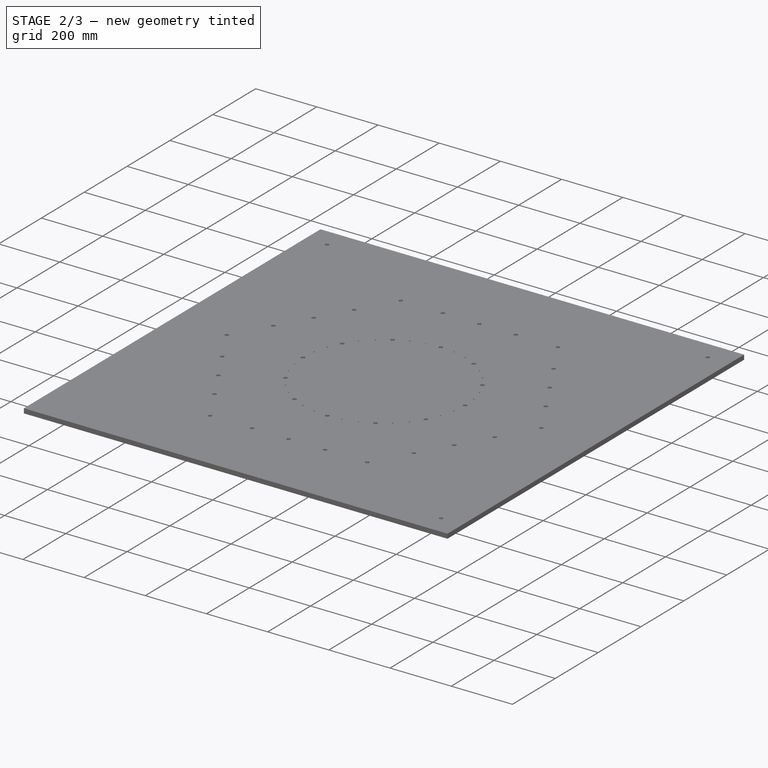
[diagram: stage 2 of 3 — iso view after this stage's code; geometry added in this stage tinted green]
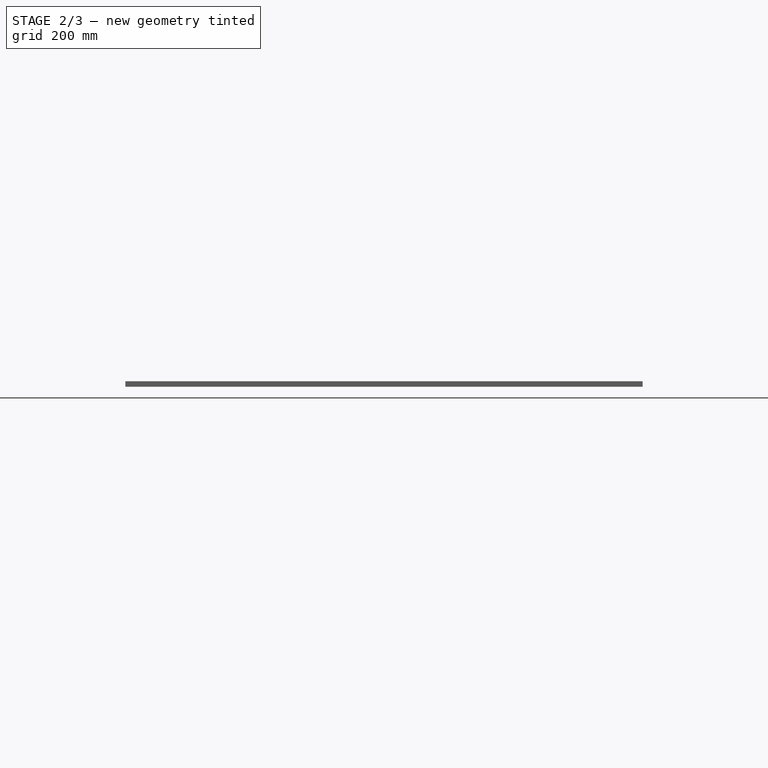
[diagram: stage 2 of 3 — front view after this stage's code; geometry added in this stage tinted green]
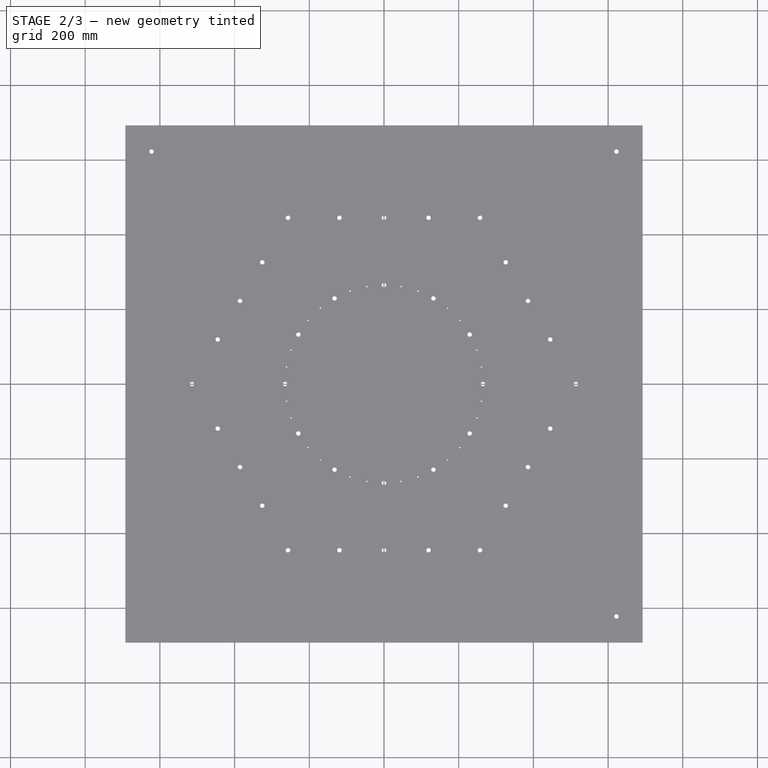
[diagram: stage 2 of 3 — top view after this stage's code; geometry added in this stage tinted green]
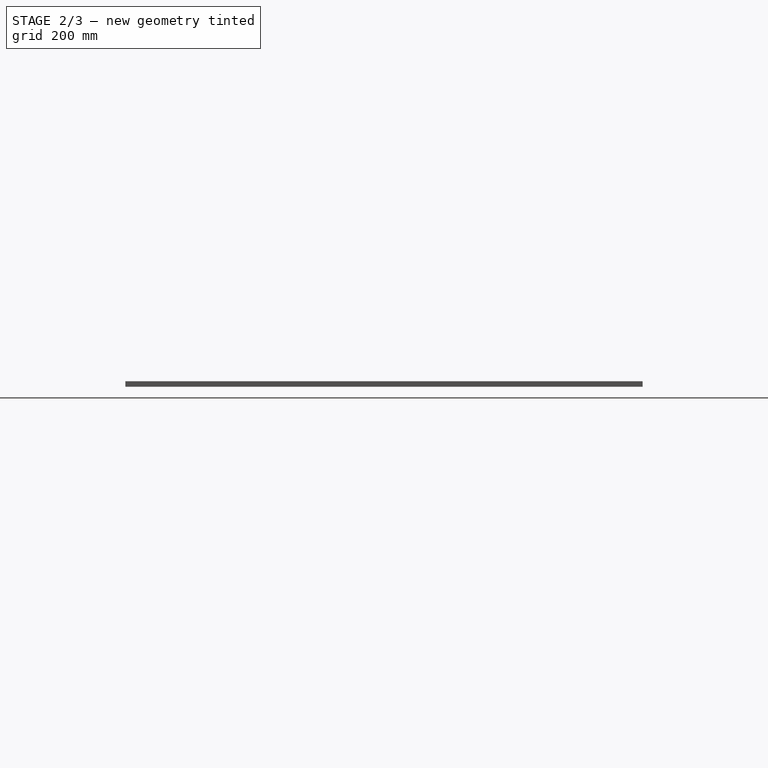
[diagram: stage 2 of 3 — right view after this stage's code; geometry added in this stage tinted green]
FEATURE [PartDesign::PolarPattern] PolarPattern  label="InnerBoltHolesPolarPattern"
  Angle = 360
  Axis = -> Sketch [N_Axis]
  BaseFeature = -> Pocket
  Mode = 0
  Occurrences = 12
  Offset = 120
  Originals = -> [Pocket]
  Suppressed = false
  TransformMode = 0
  expr: Occurrences = Spreadsheet.StatorMoldIslandNumberOfBolts
FEATURE [PartDesign::Pocket] Pocket003  label="CornerBoltPocket"
  BaseFeature = -> PolarPattern
  Direction = (0,0,-1)
  Length = 5
  Length2 = 100
  Profile = -> Sketch007
  Suppressed = false
  Type = 1
FEATURE [PartDesign::PolarPattern] PolarPattern007  label="CornerBoltPolarPattern"
  Angle = 360
  Axis = -> Sketch007 [N_Axis]
  BaseFeature = -> Pocket003
  Mode = 0
  Occurrences = 6
  Offset = 120
  Originals = -> [Pocket003]
  Suppressed = false
  TransformMode = 0
FEATURE [PartDesign::Body] Body  label="Stator_Mold_BoltShaftPattern"
  AllowCompound = false
  BaseFeature = -> Binder
  Group = -> [BaseFeature,DatumPlane001,Sketch006,Pocket002,Sketch008,Pocket004,Sketch009,Pocket005,Binder,Sketch,PolarPattern006,PolarPattern008,PolarPattern009,Pocket,PolarPattern,Sketch007,Pocket003,PolarPattern007]
  Origin = -> Origin
  Tip = -> PolarPattern007
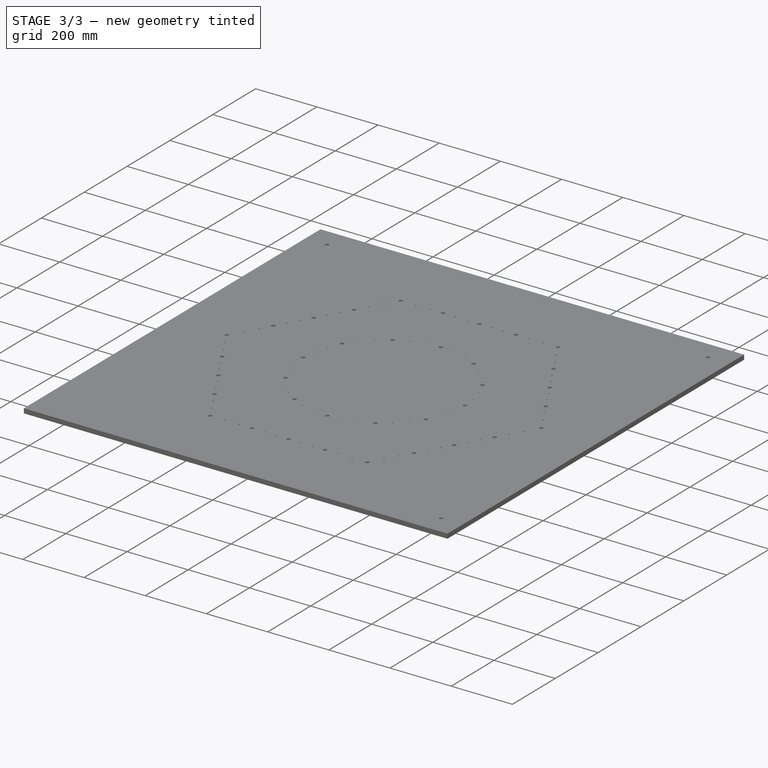
[diagram: stage 3 of 3 — iso view after this stage's code; geometry added in this stage tinted green]
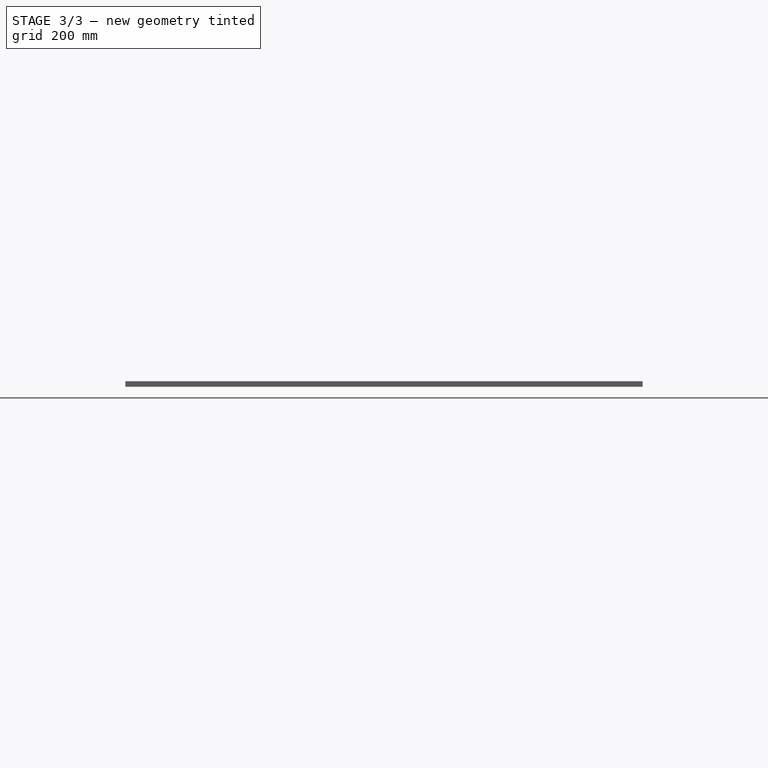
[diagram: stage 3 of 3 — front view after this stage's code; geometry added in this stage tinted green]
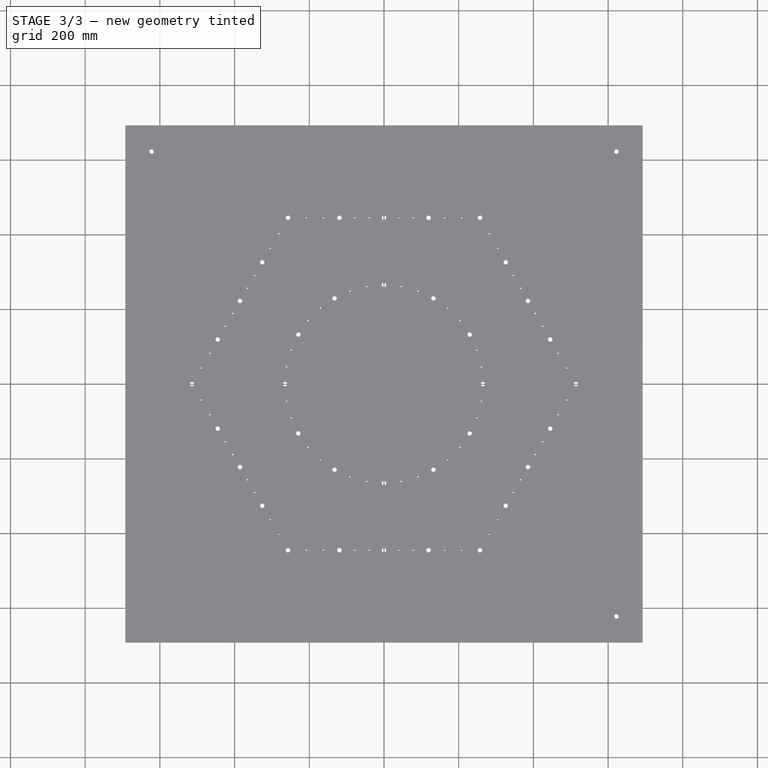
[diagram: stage 3 of 3 — top view after this stage's code; geometry added in this stage tinted green]
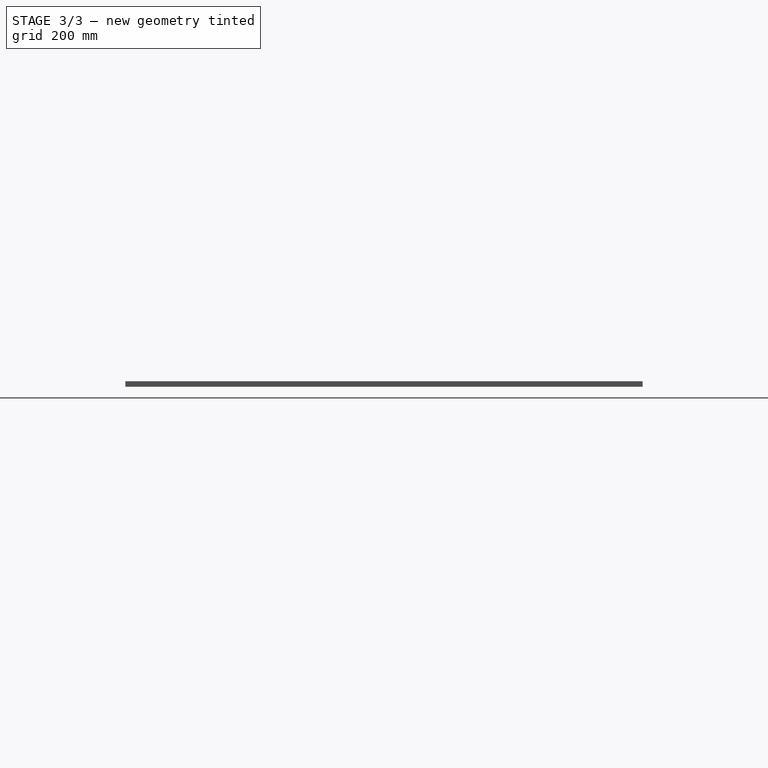
[diagram: stage 3 of 3 — right view after this stage's code; geometry added in this stage tinted green]
FEATURE [Spreadsheet::Sheet] Spreadsheet
  cells = A1='Inputs; A2='StatorThickness; B2='NumberOfHoles; C2='EarAngle; A3(StatorThickness)==Master_of_Puppets#Spreadsheet.StatorThickness; B3(NumberOfHoles)==Master_of_Puppets#Alternator.NumberOfStatorHoles; C3(EarAngle)==Master_of_Puppets#Alternator.EarAngle; A4='StatorMoldScrewHoleRadius; B4='EarSize; C4='LengthMiddleHoles; A5(StatorMoldScrewHoleRadius)==Master_of_Puppets#Alternator.StatorMoldScrewHoleRadius; B5(EarSize)==Master_of_Puppets#Alternator.EarSize; C5(LengthMiddleHoles)==Master_of_Puppets#Alternator.LengthMiddleHoles; A6='IslandInnerRadius; B6='LargeHoleAngle; C6='StatorMoldIslandScrewAngle; A7(IslandInnerRadius)==Master_of_Puppets#Alternator.IslandInnerRadius; B7(LargeHoleAngle)==Master_of_Puppets#Alternator.LargeHoleAngle; C7(StatorMoldIslandScrewAngle)==Master_of_Puppets#Alternator.StatorMoldIslandScrewAngle; A8='StatorMoldIslandNumberOfScrewSectors; B8='StatorMoldIslandNumberOfBolts; C8='StatorMoldIslandNumberOfPolarPatternScrewOccurrences; A9(StatorMoldIslandNumberOfScrewSectors)==Master_of_Puppets#Alternator.StatorMoldIslandNumberOfScrewSectors; B9(StatorMoldIslandNumberOfBolts)==Master_of_Puppets#Alternator.StatorMoldIslandNumberOfBolts; C9(StatorMoldIslandNumberOfPolarPatternScrewOccurrences)==Master_of_Puppets#Alternator.StatorMoldIslandNumberOfPolarPatternScrewOccurrences; A10='LineFromBottomRightToBottomLeftCornerSlope; B10='LineFromBottomRightToBottomLeftCornerYIntercept; C10='StatorMoldScrewLength; A11(LineFromBottomRightToBottomLeftCornerSlope)==Master_of_Puppets#Alternator.LineFromBottomRightToBottomLeftCornerSlope; B11(LineFromBottomRightToBottomLeftCornerYIntercept)==Master_of_Puppets#Alternator.LineFromBottomRightToBottomLeftCornerYIntercept; C11(StatorMoldScrewLength)==Master_of_Puppets#Alternator.StatorMoldScrewLength; A12='Calculated; A13='SpokeAngle; B13='ScrewSpokeAngle; C13='ScrewZ; A14(SpokeAngle)==LargeHoleAngle / 3; B14(ScrewSpokeAngle)==60 deg / 12; C14(ScrewZ)==StatorThickness * 2 - StatorMoldScrewLength; A15='InnerScrew1X; B15='InnerScrew1Y; A16(InnerScrew1X)==IslandInnerRadius * cos(StatorMoldIslandScrewAngle * 1); B16(InnerScrew1Y)==IslandInnerRadius * sin(StatorMoldIslandScrewAngle * 1); A17='InnerScrew2X; B17='InnerScrew2Y; A18(InnerScrew2X)==IslandInnerRadius * cos(StatorMoldIslandScrewAngle * 2); B18(InnerScrew2Y)==IslandInnerRadius * sin(StatorMoldIslandScrewAngle * 2); A19='Outer Screws; A20='OuterScrew1RadiusX; B20='OuterScrew1RadiusY; C20='OuterScrew1RadiusSlope; A21(OuterScrew1RadiusX)==LengthMiddleHoles * cos(ScrewSpokeAngle * 13); B21(OuterScrew1RadiusY)==LengthMiddleHoles * sin(ScrewSpokeAngle * 13); C21(OuterScrew1RadiusSlope)==OuterScrew1RadiusY / OuterScrew1RadiusX; A22='OuterScrew1X; B22='OuterScrew1Y; A23(OuterScrew1X)==LineFromBottomRightToBottomLeftCornerYIntercept / (OuterScrew1RadiusSlope - LineFromBottomRightToBottomLeftCornerSlope); B23(OuterScrew1Y)==OuterScrew1X * OuterScrew1RadiusSlope; A24='OuterScrew2RadiusX; B24='OuterScrew2RadiusY; C24='OuterScrew2RadiusSlope; A25(OuterScrew2RadiusX)==LengthMiddleHoles * cos(ScrewSpokeAngle * 14); B25(OuterScrew2RadiusY)==LengthMiddleHoles * sin(ScrewSpokeAngle * 14); C25(OuterScrew2RadiusSlope)==OuterScrew2RadiusY / OuterScrew2RadiusX; A26='OuterScrew2X; B26='OuterScrew2Y; A27(OuterScrew2X)==LineFromBottomRightToBottomLeftCornerYIntercept / (OuterScrew2RadiusSlope - LineFromBottomRightToBottomLeftCornerSlope); B27(OuterScrew2Y)==OuterScrew2X * OuterScrew2RadiusSlope; A28='OuterScrew3RadiusX; B28='OuterScrew3RadiusY; C28='OuterScrew3RadiusSlope; A29(OuterScrew3RadiusX)==LengthMiddleHoles * cos(ScrewSpokeAngle * 16); B29(OuterScrew3RadiusY)==LengthMiddleHoles * sin(ScrewSpokeAngle * 16); C29(OuterScrew3RadiusSlope)==OuterScrew3RadiusY / OuterScrew3RadiusX; A30='OuterScrew3X; B30='OuterScrew3Y; A31(OuterScrew3X)==LineFromBottomRightToBottomLeftCornerYIntercept / (OuterScrew3RadiusSlope - LineFromBottomRightToBottomLeftCornerSlope); B31(OuterScrew3Y)==OuterScrew3X * OuterScrew3RadiusSlope; A32='OuterScrew4RadiusX; B32='OuterScrew4RadiusY; C32='OuterScrew4RadiusSlope; A33(OuterScrew4RadiusX)==LengthMiddleHoles * cos(ScrewSpokeAngle * 17); B33(OuterScrew4RadiusY)==LengthMiddleHoles * sin(ScrewSpokeAngle * 17); C33(OuterScrew4RadiusSlope)==OuterScrew4RadiusY / OuterScrew4RadiusX; A34='OuterScrew4X; B34='OuterScrew4Y; A35(OuterScrew4X)==LineFromBottomRightToBottomLeftCornerYIntercept / (OuterScrew4RadiusSlope - LineFromBottomRightToBottomLeftCornerSlope); B35(OuterScrew4Y)==OuterScrew4X * OuterScrew4RadiusSlope; A36='OuterScrew5RadiusX; B36='OuterScrew5RadiusY; C36='OuterScrew5RadiusSlope; A37(OuterScrew5RadiusX)==LengthMiddleHoles * cos(ScrewSpokeAngle * 19); B37(OuterScrew5RadiusY)==LengthMiddleHoles * sin(ScrewSpokeAngle * 19); C37(OuterScrew5RadiusSlope)==OuterScrew5RadiusY / OuterScrew5RadiusX; A38='OuterScrew5X; B38='OuterScrew5Y; A39(OuterScrew5X)==LineFromBottomRightToBottomLeftCornerYIntercept / (OuterScrew5RadiusSlope - LineFromBottomRightToBottomLeftCornerSlope); B39(OuterScrew5Y)==OuterScrew5X * OuterScrew5RadiusSlope; A40='OuterScrew6RadiusX; B40='OuterScrew6RadiusY; C40='OuterScrew6RadiusSlope; A41(OuterScrew6RadiusX)==LengthMiddleHoles * cos(ScrewSpokeAngle * 20); B41(OuterScrew6RadiusY)==LengthMiddleHoles * sin(ScrewSpokeAngle * 20); C41(OuterScrew6RadiusSlope)==OuterScrew6RadiusY / OuterScrew6RadiusX; A42='OuterScrew6X; B42='OuterScrew6Y; A43(OuterScrew6X)==LineFromBottomRightToBottomLeftCornerYIntercept / (OuterScrew6RadiusSlope - LineFromBottomRightToBottomLeftCornerSlope); B43(OuterScrew6Y)==OuterScrew6X * OuterScrew6RadiusSlope; A44='OuterScrew7RadiusX; B44='OuterScrew7RadiusY; C44='OuterScrew7RadiusSlope; A45(OuterScrew7RadiusX)==LengthMiddleHoles * cos(ScrewSpokeAngle * 22); B45(OuterScrew7RadiusY)==LengthMiddleHoles * sin(ScrewSpokeAngle * 22); C45(OuterScrew7RadiusSlope)==OuterScrew7RadiusY / OuterScrew7RadiusX; A46='OuterScrew7X; B46='OuterScrew7Y; A47(OuterScrew7X)==LineFromBottomRightToBottomLeftCornerYIntercept / (OuterScrew7RadiusSlope - LineFromBottomRightToBottomLeftCornerSlope); B47(OuterScrew7Y)==OuterScrew7X * OuterScrew7RadiusSlope; A48='OuterScrew8RadiusX; B48='OuterScrew8RadiusY; C48='OuterScrew8RadiusSlope; A49(OuterScrew8RadiusX)==LengthMiddleHoles * cos(ScrewSpokeAngle * 23); B49(OuterScrew8RadiusY)==LengthMiddleHoles * sin(ScrewSpokeAngle * 23); C49(OuterScrew8RadiusSlope)==OuterScrew8RadiusY / OuterScrew8RadiusX; A50='OuterScrew8X; B50='OuterScrew8Y; A51(OuterScrew8X)==LineFromBottomRightToBottomLeftCornerYIntercept / (OuterScrew8RadiusSlope - LineFromBottomRightToBottomLeftCornerSlope); B51(OuterScrew8Y)==OuterScrew8X * OuterScrew8RadiusSlope
FEATURE [PartDesign::Plane] DatumPlane001  label="DatumPlane"
  AttachmentOffset = pos=(0,0,15) rot=(0,0,1;0rad)
  AttachmentSupport = -> [XY_Plane]
  Length = 1661.71
  MapMode = 5
  Placement = pos=(0,0,15) rot=(0,0,1;0rad)
  ResizeMode = 0
  Width = 1661.71
  expr: .AttachmentOffset.Base.z = Spreadsheet.StatorThickness
FEATURE [Sketcher::SketchObject] Sketch  label="InnerScrewHolesSketch"
  ArcFitTolerance = 0
  AttachmentSupport = -> [DatumPlane001]
  FullyConstrained = true
  MakeInternals = false
  MapMode = 5
  Placement = pos=(0,0,15) rot=(0,0,1;0rad)
  expr: Constraints[3] = Spreadsheet.IslandInnerRadius
  expr: Constraints[4] = Spreadsheet.StatorMoldIslandScrewAngle
  expr: Constraints[6] = Spreadsheet.StatorMoldScrewHoleRadius
  sketch-geometry (3):
    g0: Circle [constr] CenterX=0 CenterY=0 CenterZ=0 NormalX=0 NormalY=0 NormalZ=1 AngleXU=0 Radius=264.865
    g1: LineSegment [constr] StartX=0 StartY=0 StartZ=0 EndX=-45.9933 EndY=260.841 EndZ=0
    g2: Circle CenterX=-45.9933 CenterY=260.841 CenterZ=0 NormalX=0 NormalY=0 NormalZ=1 AngleXU=0 Radius=2
  constraints (7):
    c: Coincident(g0,g-1)
    c: Coincident(g1,g0)
    c: PointOnObject(g1,g0)
    c: Radius(g0) = 264.865
    c: Angle(g-2,g1) = 0.174533
    c: Coincident(g2,g1)
    c: Radius(g2) = 2
FEATURE [PartDesign::SubShapeBinder] Binder
  BindCopyOnChange = 0
  BindMode = 0
  ClaimChildren = true
  Context = -> Part003 [Binder.]
  Fuse = false
  MakeFace = true
  OffsetFill = false
  OffsetIntersection = false
  OffsetJoinType = 0
  OffsetOpenResult = false
  PartialLoad = false
  Refine = true
  Relative = true
  Support = -> [<external Stator_Mold_BoltShaftPattern_Hexagonal.FCStd>#Body]
  _Version = 2
FEATURE [PartDesign::FeatureBase] BaseFeature
  BaseFeature = -> Binder
  Suppressed = false
FEATURE [PartDesign::Pocket] Pocket  label="InnerScrewHolesPocket"
  BaseFeature = -> BaseFeature
  Direction = (0,0,-1)
  Length = 5
  Length2 = 100
  Profile = -> Sketch
  Suppressed = false
  Type = 1
FEATURE [PartDesign::PolarPattern] PolarPattern  label="InnerScrewHolesPolarPattern"
  Angle = 360
  Axis = -> Z_Axis
  BaseFeature = -> Pocket
  Mode = 0
  Occurrences = 36
  Offset = 120
  Originals = -> [Pocket]
  Suppressed = false
  TransformMode = 0
  expr: Occurrences = Spreadsheet.StatorMoldIslandNumberOfScrewSectors
FEATURE [Sketcher::SketchObject] Sketch001  label="OuterScrewsSketch"
  ArcFitTolerance = 0
  AttachmentSupport = -> [DatumPlane001]
  FullyConstrained = true
  MakeInternals = false
  MapMode = 5
  Placement = pos=(0,0,15) rot=(0,0,1;0rad)
  expr: Constraints[19] = Spreadsheet.LengthMiddleHoles
  expr: Constraints[52] = Spreadsheet.StatorMoldScrewHoleRadius
  sketch-geometry (23):
    g0: LineSegment [constr] StartX=257.01 StartY=445.155 StartZ=0 EndX=-257.01 EndY=445.155 EndZ=0
    g1: LineSegment [constr] StartX=-257.01 StartY=445.155 StartZ=0 EndX=-514.02 EndY=5.68e-14 EndZ=0
    g2: LineSegment [constr] StartX=-514.02 StartY=5.68e-14 StartZ=0 EndX=-257.01 EndY=-445.155 EndZ=0
    g3: LineSegment [constr] StartX=-257.01 StartY=-445.155 StartZ=0 EndX=257.01 EndY=-445.155 EndZ=0
    g4: LineSegment [constr] StartX=257.01 StartY=-445.155 StartZ=0 EndX=514.02 EndY=5.68e-14 EndZ=0
    g5: LineSegment [constr] StartX=514.02 StartY=5.68e-14 StartZ=0 EndX=257.01 EndY=445.155 EndZ=0
    g6: Circle [constr] CenterX=0 CenterY=0 CenterZ=0 NormalX=0 NormalY=0 NormalZ=1 AngleXU=0 Radius=514.02
    g7: LineSegment [constr] StartX=0 StartY=0 StartZ=0 EndX=424.762 EndY=154.601 EndZ=0
    g8: LineSegment [constr] StartX=0 StartY=0 StartZ=0 EndX=404.988 EndY=188.849 EndZ=0
    g9: LineSegment [constr] StartX=0 StartY=0 StartZ=0 EndX=366.042 EndY=256.306 EndZ=0
    g10: LineSegment [constr] StartX=0 StartY=0 StartZ=0 EndX=346.269 EndY=290.554 EndZ=0
    g11: Circle CenterX=424.762 CenterY=154.601 CenterZ=0 NormalX=0 NormalY=0 NormalZ=1 AngleXU=0 Radius=2
    g12: Circle CenterX=404.988 CenterY=188.849 CenterZ=0 NormalX=0 NormalY=0 NormalZ=1 AngleXU=0 Radius=2
    g13: Circle CenterX=366.042 CenterY=256.306 CenterZ=0 NormalX=0 NormalY=0 NormalZ=1 AngleXU=0 Radius=2
    g14: Circle CenterX=346.269 CenterY=290.554 CenterZ=0 NormalX=0 NormalY=0 NormalZ=1 AngleXU=0 Radius=2
    g15: LineSegment [constr] StartX=0 StartY=0 StartZ=0 EndX=304.504 EndY=362.893 EndZ=0
    g16: LineSegment [constr] StartX=0 StartY=0 StartZ=0 EndX=281.726 EndY=402.346 EndZ=0
    g17: Circle CenterX=304.504 CenterY=362.893 CenterZ=0 NormalX=0 NormalY=0 NormalZ=1 AngleXU=0 Radius=2
    g18: Circle CenterX=281.726 CenterY=402.346 CenterZ=0 NormalX=0 NormalY=0 NormalZ=1 AngleXU=0 Radius=2
    g19: LineSegment [constr] StartX=0 StartY=0 StartZ=0 EndX=489.305 EndY=42.8086 EndZ=0
    g20: Circle CenterX=489.305 CenterY=42.8086 CenterZ=0 NormalX=0 NormalY=0 NormalZ=1 AngleXU=0 Radius=2
    g21: LineSegment [constr] StartX=0 StartY=0 StartZ=0 EndX=466.527 EndY=82.2612 EndZ=0
    g22: Circle CenterX=466.527 CenterY=82.2612 CenterZ=0 NormalX=0 NormalY=0 NormalZ=1 AngleXU=0 Radius=2
  constraints (56):
    c: Coincident(g0,g1)
    c: Coincident(g1,g2)
    c: Coincident(g2,g3)
    c: Coincident(g3,g4)
    c: Coincident(g4,g5)
    c: Coincident(g5,g0)
    c: Equal(g0, g1-g5) x5
    c: PointOnObject(g0,g6)
    c: PointOnObject(g1,g6)
    c: PointOnObject(g2,g6)
    c: PointOnObject(g3,g6)
    c: PointOnObject(g4,g6)
    c: PointOnObject(g5,g6)
    c: Coincident(g6,g-1)
    c: Horizontal(g1,g4)
    c: Radius(g6) = 514.02
    c: Coincident(g19,g-1)
    c: Coincident(g21,g-1)
    c: Coincident(g7,g-1)
    c: PointOnObject(g7,g5)
    c: PointOnObject(g8,g5)
    c: Coincident(g9,g8)
    c: PointOnObject(g9,g5)
    c: Coincident(g10,g8)
    c: PointOnObject(g10,g5)
    c: Angle(g7,g8) = 0.0872665
    c: Angle(g8,g9) = 0.174533
    c: Angle(g9,g10) = 0.0872665
    c: Coincident(g8,g-1)
    c: Coincident(g11,g7)
    c: Coincident(g12,g8)
    c: Coincident(g13,g9)
    c: Coincident(g14,g10)
    c: Equal(g11,g12)
    c: Equal(g12,g13)
    c: Equal(g13,g14)
    c: Coincident(g15,g-1)
    c: PointOnObject(g15,g5)
    c: Coincident(g16,g15)
    c: PointOnObject(g16,g5)
    c: Angle(g10,g15) = 0.174533
    c: Coincident(g17,g15)
    c: Equal(g17,g14)
    c: Coincident(g18,g16)
    c: Equal(g18,g17)
    c: Angle(g15,g16) = 0.0872665
    c: PointOnObject(g19,g5)
    c: Coincident(g20,g19)
    c: Radius(g20) = 2
    c: PointOnObject(g21,g5)
    c: Coincident(g22,g21)
    c: Equal(g22,g20)
    c: Angle(g21,g7) = 0.174533
    c: Equal(g12,g20)
    c: Angle(g-1,g19) = 0.0872665
    c: Angle(g19,g21) = 0.0872665
FEATURE [PartDesign::Pocket] Pocket001  label="OuterScrewsPocket"
  BaseFeature = -> PolarPattern
  Direction = (0,0,-1)
  Length = 5
  Length2 = 100
  Profile = -> Sketch001
  Suppressed = false
  Type = 1
FEATURE [PartDesign::PolarPattern] PolarPattern001  label="OuterScrewsPolarPattern"
  Angle = 360
  Axis = -> Sketch001 [N_Axis]
  BaseFeature = -> Pocket001
  Mode = 0
  Occurrences = 6
  Offset = 120
  Originals = -> [Pocket001]
  Suppressed = false
  TransformMode = 0
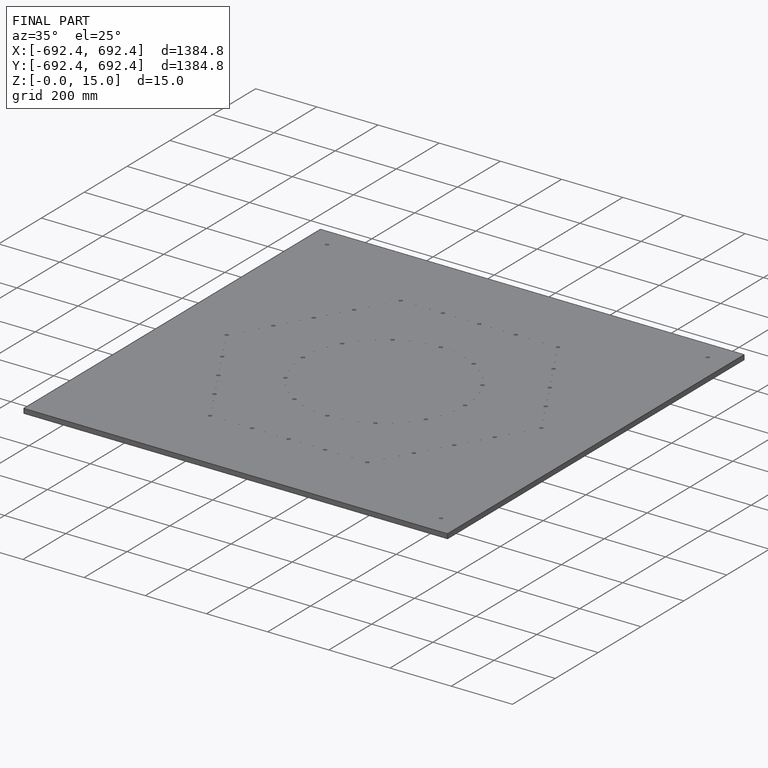
[diagram: finished part — iso view with bounding-box wireframe]
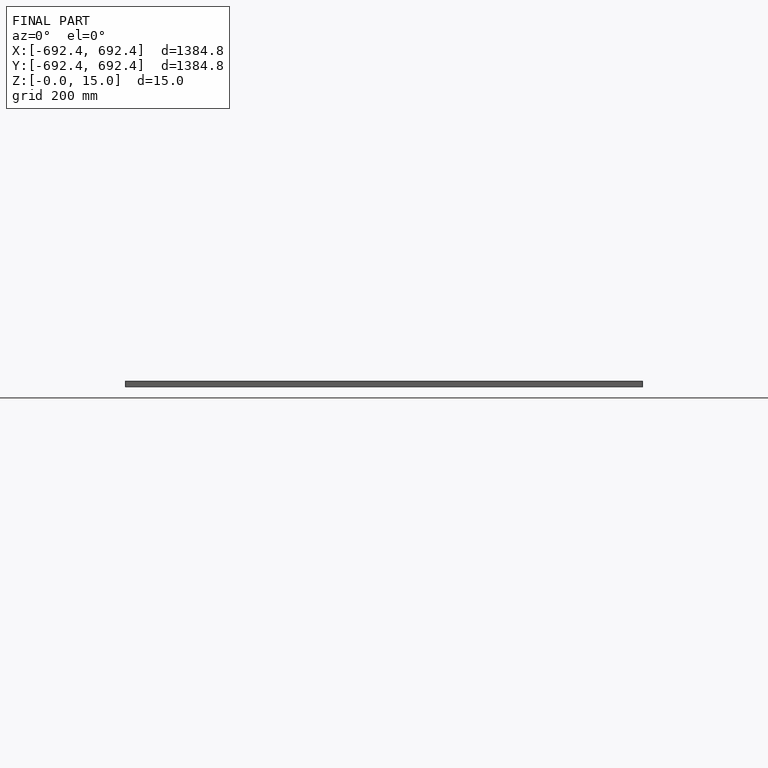
[diagram: finished part — front view with bounding-box wireframe]
